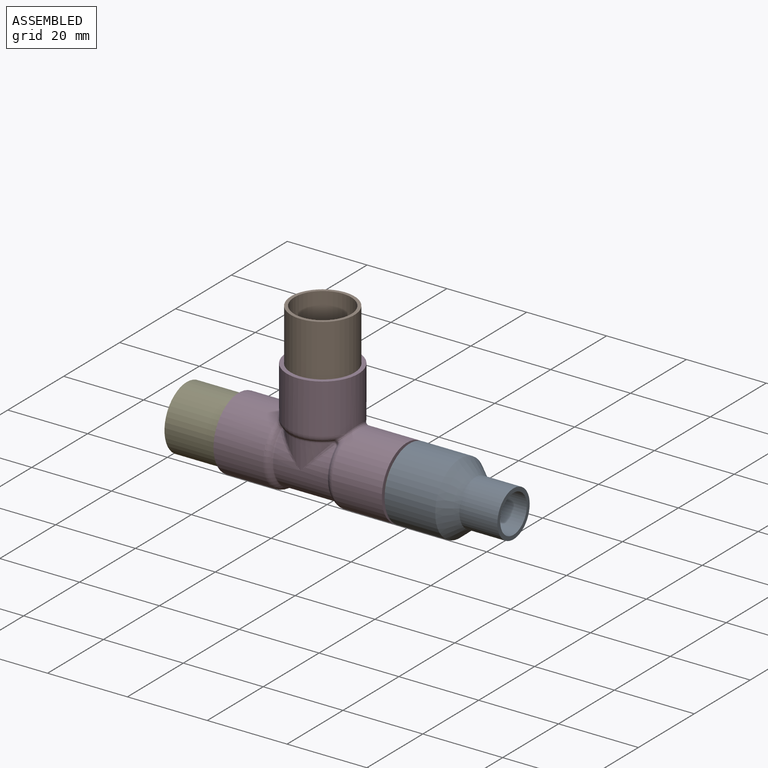
[diagram: assembled view]
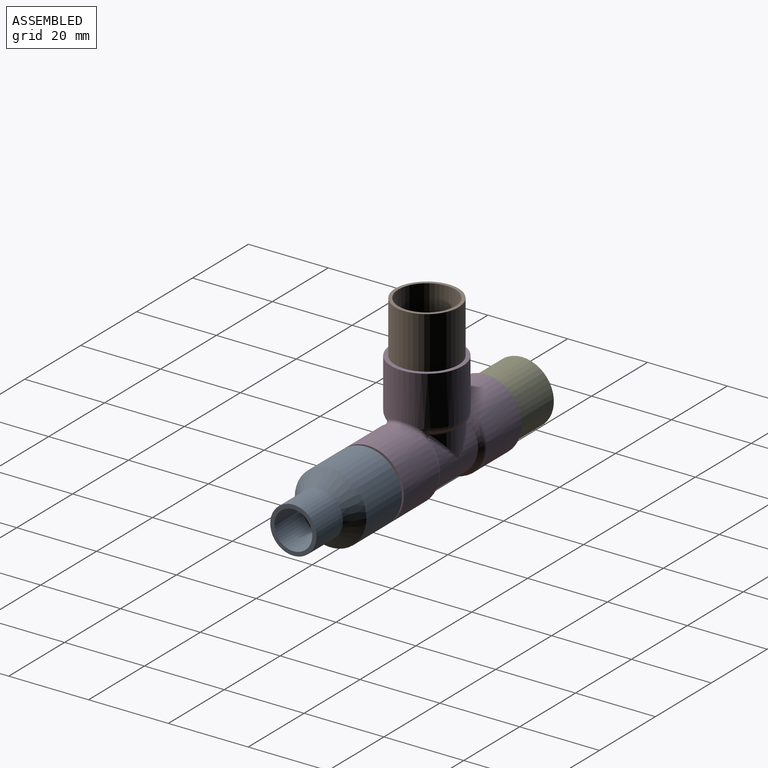
[diagram: assembled view, second angle]
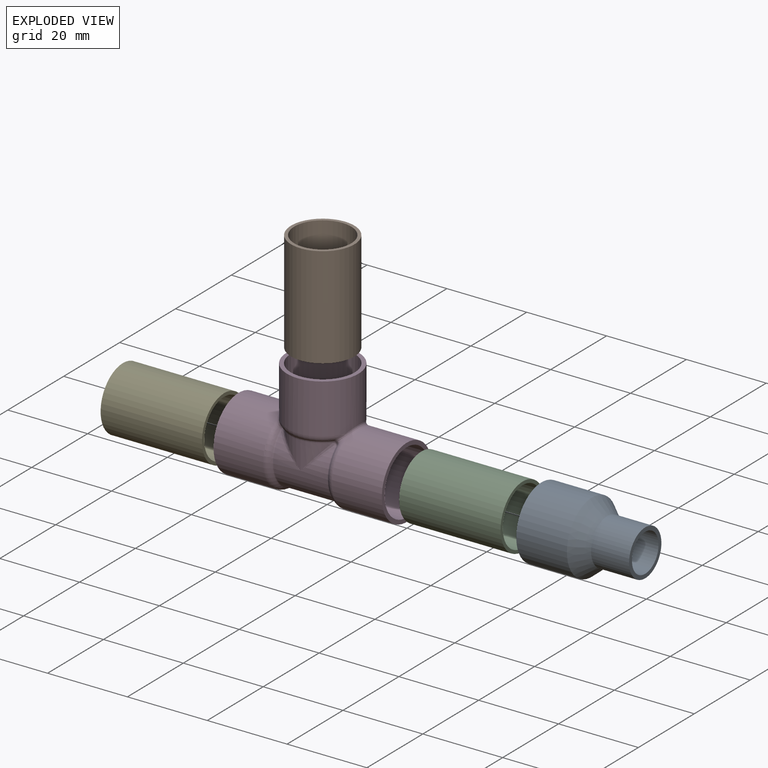
[diagram: exploded view]
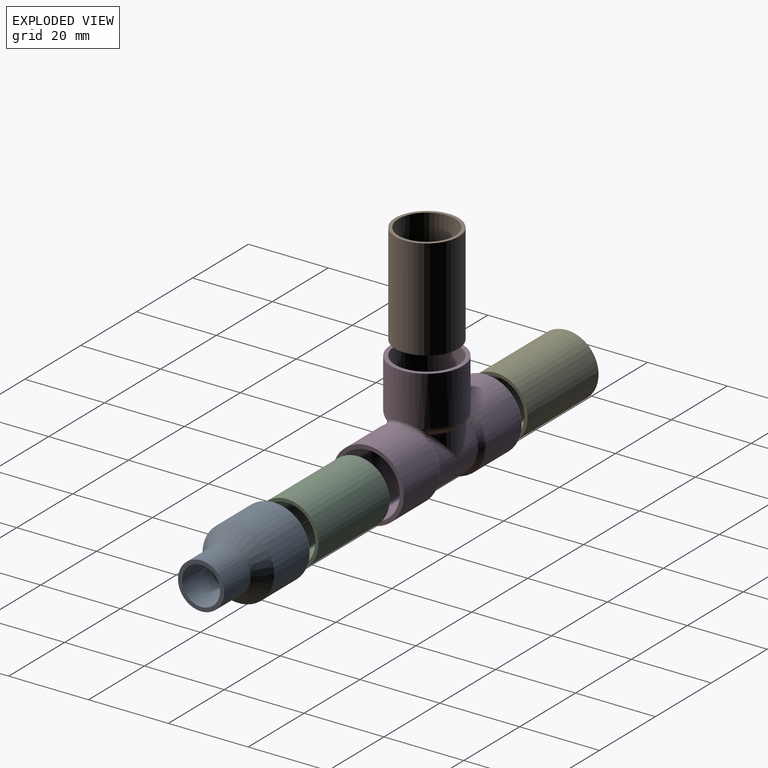
[diagram: exploded view, second angle]
ASSEMBLY  parts=5 mates=8
PART A: 8 faces, bbox 26x18x18 mm
  f0: cylinder r=8.98mm len=17.96mm, axis (1,0,0), area 716.5mm2, adj f1,f4
  f1: plane 17.96x17.96mm, normal (-1,0,0), area 54.1mm2, adj f0,f5
  f2: cylinder r=5.78mm len=11.56mm, axis (-1,0,0), area 345.8mm2, adj f3,f4
  f3: plane 11.56x11.56mm, normal (1,0,0), area 33.6mm2, adj f2,f6
  f4: cone r=8.98mm half-angle=40deg, axis (-1,0,0), area 230.7mm2, adj f0,f2
  f5: cylinder r=7.96mm len=15.93mm, axis (1,0,0), area 616.9mm2, adj f1,f7
  f6: cylinder r=4.76mm len=9.9mm, axis (-1,0,0), area 296.1mm2, adj f3,f7
  f7: cone r=8.2mm half-angle=40deg, axis (-1,0,0), area 198.9mm2, adj f5,f6
PART B: 4 faces, bbox 25.4x15.9x15.9 mm
  f0: cylinder r=7.12mm len=25.4mm, axis (-1,0,0), area 1137.1mm2, adj f2,f3
  f1: cylinder r=7.94mm len=25.4mm, axis (-1,0,0), area 1266.8mm2, adj f2,f3
  f2: plane 15.88x15.88mm, normal (1,0,0), area 38.5mm2, adj f0,f1
  f3: plane 15.88x15.88mm, normal (-1,0,0), area 38.5mm2, adj f0,f1
PART C: same geometry as B
PART D: 87 faces, bbox 42.2x19.4x31.1 mm
  f0: plane 17.96x17.96mm, normal (1,0,0), area 54.1mm2, adj f11,f24
  f1: plane 17.96x17.96mm, normal (0,0,1), area 54.1mm2, adj f2,f29
  f2: cylinder r=8.98mm len=17.96mm, axis (0,0,-1), area 698.7mm2, adj f1,f6,f7,f56,f85
  f3: cone r=7.67mm half-angle=45deg, axis (0,0,1), area 5.7mm2, adj f6,f63,f65,f70,f72,f75,f80,f82
  f4: cone r=7.67mm half-angle=45deg, axis (0,0,1), area 5.7mm2, adj f7,f59,f62,f67,f69,f71,f76,f79
  f5: cone r=7.67mm half-angle=45deg, axis (1,0,0), area 21.7mm2, adj f20,f52,f53,f54,f62,f65
  f6: torus R=7.2mm, axis (0,0,1), area 25mm2, adj f2,f3,f58,f60,f84,f86
  f7: torus R=7.2mm, axis (0,0,1), area 25mm2, adj f2,f4,f55,f57,f81,f83
  f8: bspline ~7.63x7.63mm, area 5.8mm2, adj f10,f12,f52,f66,f70
  f9: bspline ~7.63x7.63mm, area 5.8mm2, adj f12,f16,f49,f71,f73
  f10: cylinder r=7.96mm len=12.21mm, axis (0,0,-1), area 47.9mm2, adj f8,f17,f72
  f11: cylinder r=8.98mm len=17.96mm, axis (-1,0,0), area 692.9mm2, adj f0,f20,f55,f56,f58
  f12: cylinder r=7.96mm len=15.93mm, axis (-1,0,0), area 431.4mm2, adj f8,f9,f17,f18,f50,f53
  f13: cone r=8.68mm half-angle=45deg, axis (-1,0,0), area 21.7mm2, adj f19,f49,f50,f51,f76,f80
  f14: cylinder r=8.98mm len=17.96mm, axis (-1,0,0), area 692.9mm2, adj f15,f19,f83,f85,f86
  f15: plane 17.96x17.96mm, normal (-1,0,0), area 54.1mm2, adj f14,f28
  f16: cylinder r=7.96mm len=12.21mm, axis (0,0,-1), area 47.9mm2, adj f9,f18,f69
  f17: bspline ~7.63x7.63mm, area 5.8mm2, adj f10,f12,f51,f75,f78
  f18: bspline ~7.63x7.63mm, area 5.8mm2, adj f12,f16,f54,f61,f67
  f19: torus R=7.2mm, axis (1,0,0), area 62.6mm2, adj f13,f14,f79,f81,f82,f84
  f20: torus R=7.2mm, axis (1,0,0), area 62.6mm2, adj f5,f11,f57,f59,f60,f63
  f21: bspline ~8.68x8.68mm, area 7.6mm2, adj f23,f26,f40,f42
  f22: bspline ~8.68x8.68mm, area 6.9mm2, adj f26,f31,f45,f48
  f23: cylinder r=6.95mm len=11.4mm, axis (0,0,-1), area 47.8mm2, adj f21,f32,f47
  f24: cylinder r=7.96mm len=15.93mm, axis (-1,0,0), area 619.6mm2, adj f0,f36
  f25: cone r=6.95mm half-angle=45deg, axis (1,0,0), area 35.6mm2, adj f36,f37,f38,f40
  f26: cylinder r=6.95mm len=14.23mm, axis (-1,0,0), area 398.3mm2, adj f21,f22,f32,f33,f37,f41
  f27: cone r=7.96mm half-angle=45deg, axis (-1,0,0), area 35.6mm2, adj f35,f41,f43,f45
  f28: cylinder r=7.96mm len=15.93mm, axis (-1,0,0), area 619.6mm2, adj f15,f35
  f29: cylinder r=7.96mm len=15.93mm, axis (0,0,-1), area 619.6mm2, adj f1,f34
  f30: cone r=6.95mm half-angle=45deg, axis (0,0,1), area 33.6mm2, adj f34,f42,f46,f47,f48
  f31: cylinder r=6.95mm len=11.4mm, axis (0,0,-1), area 47.7mm2, adj f22,f33,f46
  f32: bspline ~8.68x8.68mm, area 11.1mm2, adj f23,f26,f43,f48
  f33: bspline ~8.68x8.68mm, area 11.1mm2, adj f26,f31,f38,f42
  f34: torus R=7.2mm, axis (0,0,1), area 29.7mm2, adj f29,f30
  f35: torus R=7.2mm, axis (1,0,0), area 29.6mm2, adj f27,f28,f44
  f36: torus R=7.2mm, axis (1,0,0), area 29.6mm2, adj f24,f25,f39
  f37: torus R=7.56mm, axis (-1,0,0), area 16.7mm2, adj f25,f26,f38,f40
  f38: bspline ~4.1x2.58mm, area 3.1mm2, adj f25,f33,f37,f39,f42
  f39: bspline ~3.06x1.01mm, area 1.5mm2, adj f36,f38,f40,f42
  f40: bspline ~4.33x2.63mm, area 3.1mm2, adj f21,f25,f37,f39,f42
  f41: torus R=7.56mm, axis (-1,0,0), area 16.7mm2, adj f26,f27,f43,f45
  f42: bspline ~8.44x2.13mm, area 6.6mm2, adj f21,f30,f33,f38,f39,f40,f46,f47
  f43: bspline ~4.1x2.58mm, area 3.1mm2, adj f27,f32,f41,f44,f48
  f44: bspline ~3.06x1.01mm, area 1.5mm2, adj f35,f43,f45,f48
  f45: bspline ~4.33x2.63mm, area 3.1mm2, adj f22,f27,f41,f44,f48
  f46: torus R=7.56mm, axis (0,0,-1), area 6.5mm2, adj f30,f31,f42,f48
  f47: torus R=7.56mm, axis (0,0,-1), area 6.5mm2, adj f23,f30,f42,f48
  f48: bspline ~8.44x2.13mm, area 6.6mm2, adj f22,f30,f32,f43,f44,f45,f46,f47
  f49: bspline ~0.54x0.47mm, area 0.1mm2, adj f9,f13,f50,f73
  f50: torus R=8.37mm, axis (1,0,0), area 12.4mm2, adj f12,f13,f49,f51
  f51: bspline ~0.62x0.55mm, area 0.1mm2, adj f13,f17,f50,f78
  f52: bspline ~0.54x0.47mm, area 0.1mm2, adj f5,f8,f53,f66
  f53: torus R=8.37mm, axis (-1,0,0), area 12.4mm2, adj f5,f12,f52,f54
  f54: bspline ~0.62x0.55mm, area 0.1mm2, adj f5,f18,f53,f61
  f55: bspline ~2.54x1.9mm, area 0.6mm2, adj f7,f11,f56,f57
  f56: bspline ~8.98x1.96mm, area 8.5mm2, adj f2,f11,f55,f58
  f57: bspline ~2.33x2.28mm, area 2.8mm2, adj f7,f20,f55,f59
  f58: bspline ~2.54x1.9mm, area 0.6mm2, adj f6,f11,f56,f60
  f59: bspline ~1.44x1.4mm, area 0.2mm2, adj f4,f20,f57,f62
  f60: bspline ~2.33x2.28mm, area 2.8mm2, adj f6,f20,f58,f63
  f61: bspline ~0.8x0.68mm, area 0.3mm2, adj f18,f54,f62,f64
  f62: bspline ~4.53x4.53mm, area 0.7mm2, adj f4,f5,f59,f61,f64
  f63: bspline ~1.44x1.4mm, area 0.2mm2, adj f3,f20,f60,f65
  f64: bspline ~0.85x0.53mm, area 0.2mm2, adj f61,f62,f67
  f65: bspline ~4.53x4.53mm, area 0.7mm2, adj f3,f5,f63,f66,f68
  f66: bspline ~0.8x0.68mm, area 0.3mm2, adj f8,f52,f65,f68
  f67: bspline ~0.91x0.69mm, area 0.2mm2, adj f4,f18,f64,f69
  f68: bspline ~0.94x0.6mm, area 0.2mm2, adj f65,f66,f70
  f69: torus R=8.72mm, axis (0,0,-1), area 8.4mm2, adj f4,f16,f67,f71
  f70: bspline ~0.91x0.69mm, area 0.2mm2, adj f3,f8,f68,f72
  f71: bspline ~0.91x0.69mm, area 0.2mm2, adj f4,f9,f69,f74
  f72: torus R=8.72mm, axis (0,0,1), area 8.4mm2, adj f3,f10,f70,f75
  f73: bspline ~0.8x0.68mm, area 0.3mm2, adj f9,f49,f74,f76
  f74: bspline ~0.85x0.53mm, area 0.2mm2, adj f71,f73,f76
  f75: bspline ~0.91x0.69mm, area 0.2mm2, adj f3,f17,f72,f77
  f76: bspline ~4.53x4.53mm, area 0.7mm2, adj f4,f13,f73,f74,f79
  f77: bspline ~0.94x0.6mm, area 0.2mm2, adj f75,f78,f80
  f78: bspline ~0.8x0.68mm, area 0.3mm2, adj f17,f51,f77,f80
  f79: bspline ~1.44x1.4mm, area 0.2mm2, adj f4,f19,f76,f81
  f80: bspline ~4.53x4.53mm, area 0.7mm2, adj f3,f13,f77,f78,f82
  f81: bspline ~2.33x2.28mm, area 2.8mm2, adj f7,f19,f79,f83
  f82: bspline ~1.44x1.4mm, area 0.2mm2, adj f3,f19,f80,f84
  f83: bspline ~2.54x1.9mm, area 0.6mm2, adj f7,f14,f81,f85
  f84: bspline ~2.33x2.28mm, area 2.8mm2, adj f6,f19,f82,f86
  f85: bspline ~8.98x1.96mm, area 8.5mm2, adj f2,f14,f83,f86
  f86: bspline ~2.54x1.9mm, area 0.6mm2, adj f6,f14,f84,f85
PART E: same geometry as B
PLACE A rot(axis=(-1,0,0),162.6deg) t=(13.39,0,0)mm
PLACE B rot(axis=(0.53,-0.66,0.53),113.4deg) t=(-21.08,0,8.95)mm
PLACE C t=(-12.38,0,0)mm
PLACE D t=(-21.08,0,0)mm
PLACE E rot(axis=(1,0,0),13.1deg) t=(-55.18,0,0)mm
MATE cylindrical B.f0 <-> D.f30  axis (0,0,-1) through (-21.08,0,8.95)mm
MATE planar A.f0 <-> C.f0  axis (-1,0,0) through (13.02,0,0)mm
MATE planar E.f0 <-> D.f5  axis (1,0,0) through (-29.78,0,0)mm
MATE planar B.f0 <-> D.f2  axis (0,0,-1) through (-21.08,0,8.95)mm
MATE cylindrical C.f0 <-> D.f5  axis (-1,0,0) through (-12.38,0,0)mm
MATE cylindrical A.f0 <-> C.f0  axis (-1,0,0) through (0.69,0,0)mm
MATE cylindrical E.f0 <-> D.f5  axis (1,0,0) through (-29.78,0,0)mm
MATE planar C.f0 <-> D.f5  axis (-1,0,0) through (-12.38,0,0)mm
